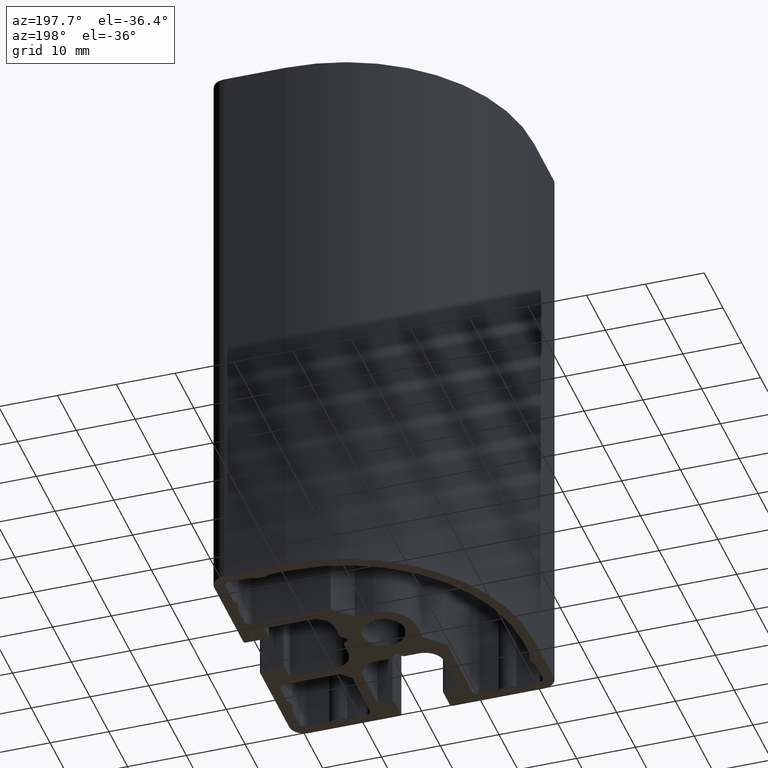
[diagram: clean part render]
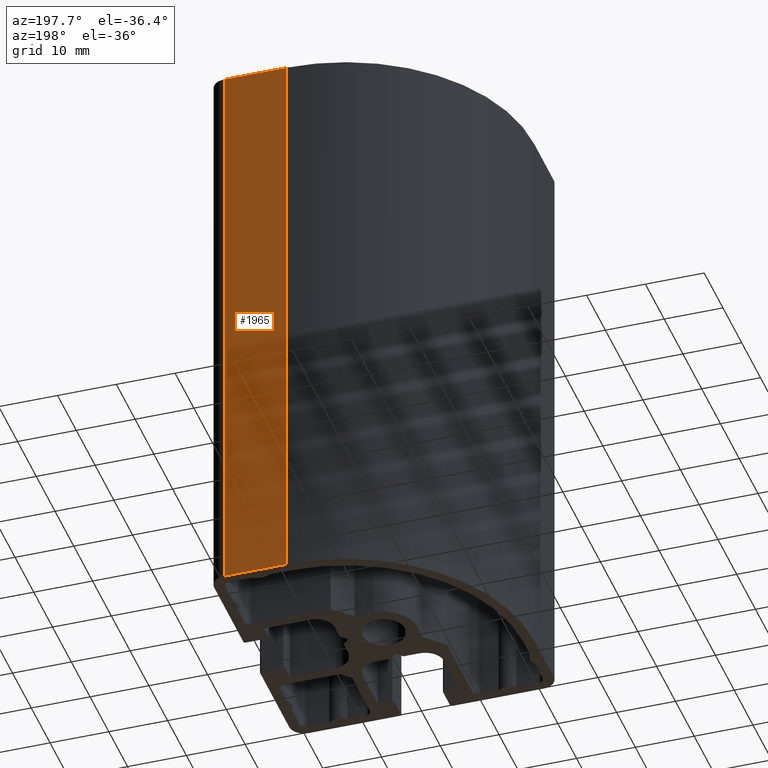
[diagram: same view with one face highlighted and labeled with its STEP entity id]
A machine part, auxiliary view. The second image highlights one B-rep face of the part: STEP entity #1965.
In plain terms, the highlighted planar face has unit normal (-0, 1, 0).
Its self-contained STEP definition (entity closure, byte-faithful):
#68=PLANE('',#2165);
#166=FACE_OUTER_BOUND('',#269,.T.);
#269=EDGE_LOOP('',(#1711,#1712,#1713,#1714));
#446=LINE('',#3293,#636);
#458=LINE('',#3321,#648);
#462=LINE('',#3335,#652);
#463=LINE('',#3336,#653);
#636=VECTOR('',#2704,100.);
#648=VECTOR('',#2730,10.5);
#652=VECTOR('',#2748,10.5);
#653=VECTOR('',#2749,100.);
#934=VERTEX_POINT('',#3289);
#936=VERTEX_POINT('',#3292);
#945=VERTEX_POINT('',#3320);
#948=VERTEX_POINT('',#3334);
#1213=EDGE_CURVE('',#934,#936,#446,.T.);
#1228=EDGE_CURVE('',#936,#945,#458,.T.);
#1235=EDGE_CURVE('',#934,#948,#462,.T.);
#1236=EDGE_CURVE('',#945,#948,#463,.T.);
#1711=ORIENTED_EDGE('',*,*,#1213,.F.);
#1712=ORIENTED_EDGE('',*,*,#1235,.T.);
#1713=ORIENTED_EDGE('',*,*,#1236,.F.);
#1714=ORIENTED_EDGE('',*,*,#1228,.F.);
#1965=ADVANCED_FACE('',(#166),#68,.T.);
#2165=AXIS2_PLACEMENT_3D('',#3333,#2746,#2747);
#2704=DIRECTION('',(0.,0.,-1.));
#2730=DIRECTION('',(1.,1.11022302462516E-16,0.));
#2746=DIRECTION('center_axis',(-1.11022302462516E-16,1.,0.));
#2747=DIRECTION('ref_axis',(-1.,0.,0.));
#2748=DIRECTION('',(1.,1.11022302462516E-16,0.));
#2749=DIRECTION('',(0.,0.,1.));
#3289=CARTESIAN_POINT('',(9.50000000000001,22.5,100.));
#3292=CARTESIAN_POINT('',(9.50000000000001,22.5,0.));
#3293=CARTESIAN_POINT('',(9.5,22.5,0.));
#3320=CARTESIAN_POINT('',(20.,22.5,0.));
#3321=CARTESIAN_POINT('',(9.99999999999999,22.5,0.));
#3333=CARTESIAN_POINT('Origin',(20.,22.5,0.));
#3334=CARTESIAN_POINT('',(20.,22.5,100.));
#3335=CARTESIAN_POINT('',(9.99999999999999,22.5,100.));
#3336=CARTESIAN_POINT('',(20.,22.5,0.));